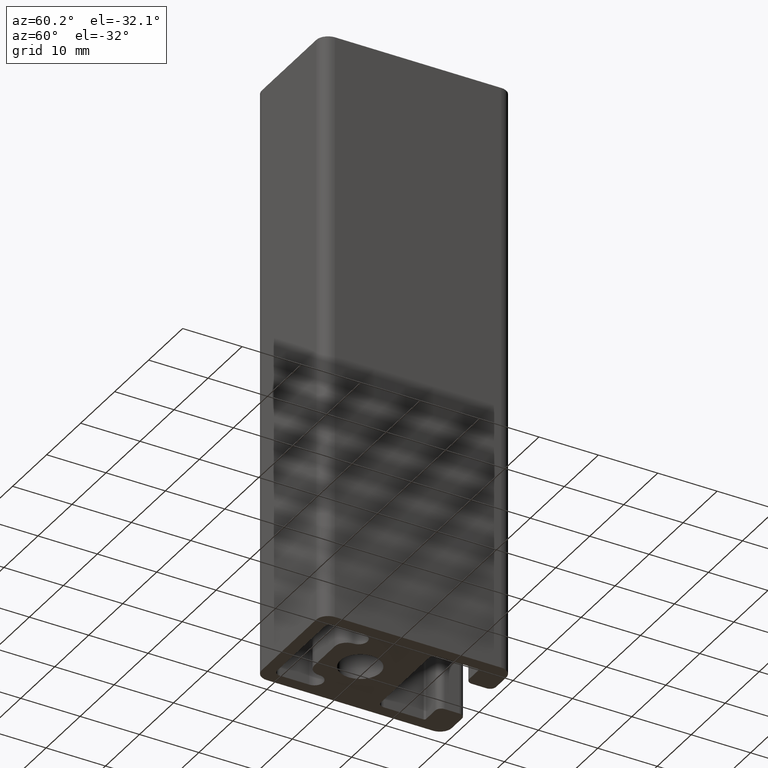
[diagram: clean part render]
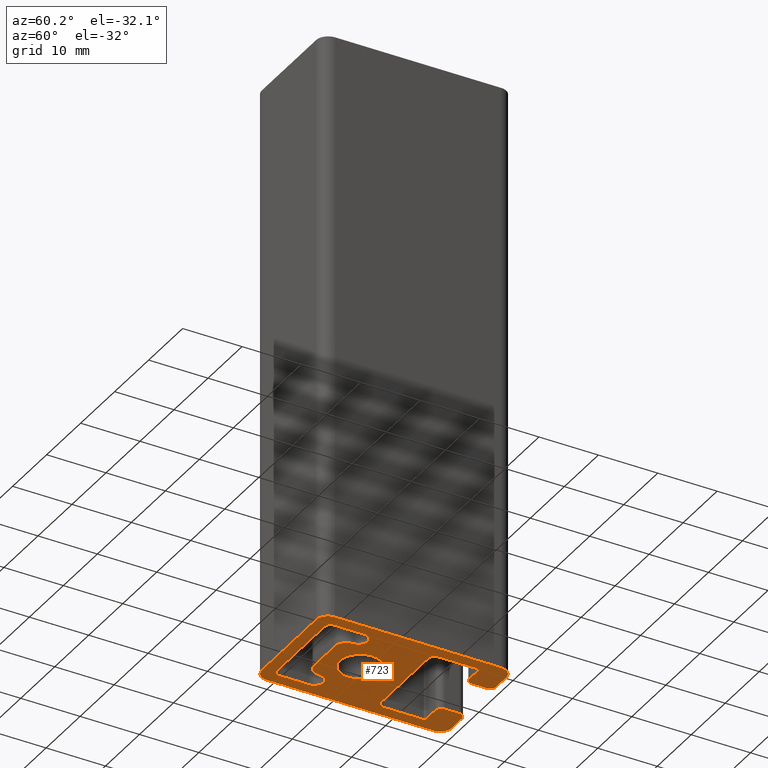
[diagram: same view with one face highlighted and labeled with its STEP entity id]
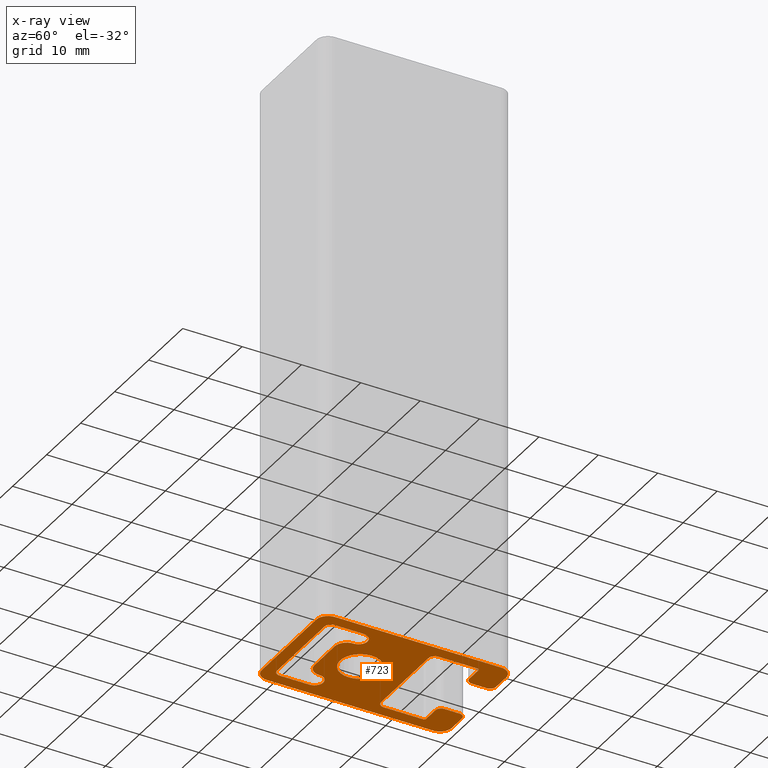
[diagram: x-ray of the same camera — body ghosted, the highlighted face saturated]
A machine part, auxiliary view. The second image highlights one B-rep face of the part: STEP entity #723.
The next image is the same camera in x-ray: the body ghosted, the highlighted face saturated — about 0% of this face is hidden behind the body in this view.
In plain terms, the highlighted planar face has unit normal (0, 0, 1).
Its self-contained STEP definition (entity closure, byte-faithful):
#17=LINE('',#1033,#83);
#21=LINE('',#1045,#87);
#26=LINE('',#1063,#92);
#31=LINE('',#1081,#97);
#37=LINE('',#1100,#103);
#41=LINE('',#1112,#107);
#45=LINE('',#1124,#111);
#49=LINE('',#1136,#115);
#53=LINE('',#1148,#119);
#57=LINE('',#1160,#123);
#61=LINE('',#1172,#127);
#63=LINE('',#1181,#129);
#68=LINE('',#1190,#134);
#73=LINE('',#1205,#139);
#77=LINE('',#1220,#143);
#80=LINE('',#1229,#146);
#83=VECTOR('',#814,14.0000011505603);
#87=VECTOR('',#826,5.00000057528016);
#92=VECTOR('',#845,5.99999999999999);
#97=VECTOR('',#864,5.00000057528015);
#103=VECTOR('',#884,2.50000399190596);
#107=VECTOR('',#896,2.70000144973507);
#111=VECTOR('',#908,6.70000144973492);
#115=VECTOR('',#920,14.0000039919057);
#119=VECTOR('',#932,6.70000144973492);
#123=VECTOR('',#944,2.70000144973507);
#127=VECTOR('',#956,2.50000399190597);
#129=VECTOR('',#966,3.00000199595299);
#134=VECTOR('',#973,3.00000199595296);
#139=VECTOR('',#986,28.);
#143=VECTOR('',#1004,28.);
#146=VECTOR('',#1015,16.);
#163=PLANE('',#800);
#166=FACE_BOUND('',#244,.T.);
#167=FACE_BOUND('',#245,.T.);
#205=FACE_OUTER_BOUND('',#243,.T.);
#243=EDGE_LOOP('',(#599,#600,#601,#602,#603,#604,#605,#606,#607,#608,#609,
#610,#611,#612,#613,#614,#615,#616,#617,#618,#619,#620,#621,#622));
#244=EDGE_LOOP('',(#623));
#245=EDGE_LOOP('',(#624,#625,#626,#627,#628,#629,#630,#631,#632,#633));
#250=CIRCLE('',#729,3.4);
#252=CIRCLE('',#733,0.999999424719846);
#254=CIRCLE('',#737,1.5);
#256=CIRCLE('',#740,2.);
#258=CIRCLE('',#744,2.);
#260=CIRCLE('',#747,1.5);
#262=CIRCLE('',#751,0.999999424719839);
#264=CIRCLE('',#754,0.999998004047022);
#266=CIRCLE('',#758,0.999998004047022);
#268=CIRCLE('',#762,0.300000546217913);
#270=CIRCLE('',#766,0.999998004047152);
#272=CIRCLE('',#770,0.99999800404715);
#274=CIRCLE('',#774,0.300000546217916);
#276=CIRCLE('',#778,0.999998004047022);
#278=CIRCLE('',#782,0.999998004047022);
#280=CIRCLE('',#787,2.);
#282=CIRCLE('',#791,1.99999999999999);
#284=CIRCLE('',#794,2.);
#286=CIRCLE('',#798,2.);
#288=VERTEX_POINT('',#1024);
#291=VERTEX_POINT('',#1030);
#292=VERTEX_POINT('',#1032);
#294=VERTEX_POINT('',#1038);
#296=VERTEX_POINT('',#1044);
#298=VERTEX_POINT('',#1050);
#300=VERTEX_POINT('',#1056);
#302=VERTEX_POINT('',#1062);
#304=VERTEX_POINT('',#1068);
#306=VERTEX_POINT('',#1074);
#308=VERTEX_POINT('',#1080);
#311=VERTEX_POINT('',#1090);
#312=VERTEX_POINT('',#1092);
#314=VERTEX_POINT('',#1098);
#316=VERTEX_POINT('',#1104);
#318=VERTEX_POINT('',#1110);
#320=VERTEX_POINT('',#1116);
#322=VERTEX_POINT('',#1122);
#324=VERTEX_POINT('',#1128);
#326=VERTEX_POINT('',#1134);
#328=VERTEX_POINT('',#1140);
#330=VERTEX_POINT('',#1146);
#332=VERTEX_POINT('',#1152);
#334=VERTEX_POINT('',#1158);
#336=VERTEX_POINT('',#1164);
#338=VERTEX_POINT('',#1170);
#340=VERTEX_POINT('',#1176);
#341=VERTEX_POINT('',#1180);
#344=VERTEX_POINT('',#1188);
#347=VERTEX_POINT('',#1195);
#348=VERTEX_POINT('',#1197);
#350=VERTEX_POINT('',#1203);
#352=VERTEX_POINT('',#1212);
#354=VERTEX_POINT('',#1218);
#356=VERTEX_POINT('',#1224);
#358=EDGE_CURVE('',#288,#288,#250,.T.);
#361=EDGE_CURVE('',#292,#291,#17,.T.);
#364=EDGE_CURVE('',#294,#292,#252,.T.);
#367=EDGE_CURVE('',#296,#294,#21,.T.);
#370=EDGE_CURVE('',#298,#296,#254,.T.);
#373=EDGE_CURVE('',#300,#298,#256,.T.);
#376=EDGE_CURVE('',#302,#300,#26,.T.);
#379=EDGE_CURVE('',#304,#302,#258,.T.);
#382=EDGE_CURVE('',#306,#304,#260,.T.);
#385=EDGE_CURVE('',#308,#306,#31,.T.);
#388=EDGE_CURVE('',#291,#308,#262,.T.);
#391=EDGE_CURVE('',#312,#311,#264,.T.);
#395=EDGE_CURVE('',#311,#314,#37,.T.);
#398=EDGE_CURVE('',#314,#316,#266,.T.);
#401=EDGE_CURVE('',#316,#318,#41,.T.);
#404=EDGE_CURVE('',#318,#320,#268,.T.);
#407=EDGE_CURVE('',#320,#322,#45,.T.);
#410=EDGE_CURVE('',#322,#324,#270,.T.);
#413=EDGE_CURVE('',#324,#326,#49,.T.);
#416=EDGE_CURVE('',#326,#328,#272,.T.);
#419=EDGE_CURVE('',#328,#330,#53,.T.);
#422=EDGE_CURVE('',#330,#332,#274,.T.);
#425=EDGE_CURVE('',#332,#334,#57,.T.);
#428=EDGE_CURVE('',#334,#336,#276,.T.);
#431=EDGE_CURVE('',#336,#338,#61,.T.);
#434=EDGE_CURVE('',#338,#340,#278,.T.);
#435=EDGE_CURVE('',#341,#312,#63,.T.);
#440=EDGE_CURVE('',#340,#344,#68,.T.);
#443=EDGE_CURVE('',#348,#347,#280,.T.);
#447=EDGE_CURVE('',#347,#350,#73,.T.);
#449=EDGE_CURVE('',#350,#341,#282,.T.);
#452=EDGE_CURVE('',#344,#352,#284,.T.);
#455=EDGE_CURVE('',#352,#354,#77,.T.);
#458=EDGE_CURVE('',#354,#356,#286,.T.);
#460=EDGE_CURVE('',#356,#348,#80,.T.);
#599=ORIENTED_EDGE('',*,*,#434,.T.);
#600=ORIENTED_EDGE('',*,*,#440,.T.);
#601=ORIENTED_EDGE('',*,*,#452,.T.);
#602=ORIENTED_EDGE('',*,*,#455,.T.);
#603=ORIENTED_EDGE('',*,*,#458,.T.);
#604=ORIENTED_EDGE('',*,*,#460,.T.);
#605=ORIENTED_EDGE('',*,*,#443,.T.);
#606=ORIENTED_EDGE('',*,*,#447,.T.);
#607=ORIENTED_EDGE('',*,*,#449,.T.);
#608=ORIENTED_EDGE('',*,*,#435,.T.);
#609=ORIENTED_EDGE('',*,*,#391,.T.);
#610=ORIENTED_EDGE('',*,*,#395,.T.);
#611=ORIENTED_EDGE('',*,*,#398,.T.);
#612=ORIENTED_EDGE('',*,*,#401,.T.);
#613=ORIENTED_EDGE('',*,*,#404,.T.);
#614=ORIENTED_EDGE('',*,*,#407,.T.);
#615=ORIENTED_EDGE('',*,*,#410,.T.);
#616=ORIENTED_EDGE('',*,*,#413,.T.);
#617=ORIENTED_EDGE('',*,*,#416,.T.);
#618=ORIENTED_EDGE('',*,*,#419,.T.);
#619=ORIENTED_EDGE('',*,*,#422,.T.);
#620=ORIENTED_EDGE('',*,*,#425,.T.);
#621=ORIENTED_EDGE('',*,*,#428,.T.);
#622=ORIENTED_EDGE('',*,*,#431,.T.);
#623=ORIENTED_EDGE('',*,*,#358,.T.);
#624=ORIENTED_EDGE('',*,*,#361,.T.);
#625=ORIENTED_EDGE('',*,*,#388,.T.);
#626=ORIENTED_EDGE('',*,*,#385,.T.);
#627=ORIENTED_EDGE('',*,*,#382,.T.);
#628=ORIENTED_EDGE('',*,*,#379,.T.);
#629=ORIENTED_EDGE('',*,*,#376,.T.);
#630=ORIENTED_EDGE('',*,*,#373,.T.);
#631=ORIENTED_EDGE('',*,*,#370,.T.);
#632=ORIENTED_EDGE('',*,*,#367,.T.);
#633=ORIENTED_EDGE('',*,*,#364,.T.);
#723=ADVANCED_FACE('',(#205,#166,#167),#163,.F.);
#729=AXIS2_PLACEMENT_3D('',#1025,#808,#809);
#733=AXIS2_PLACEMENT_3D('',#1039,#820,#821);
#737=AXIS2_PLACEMENT_3D('',#1051,#832,#833);
#740=AXIS2_PLACEMENT_3D('',#1057,#839,#840);
#744=AXIS2_PLACEMENT_3D('',#1069,#851,#852);
#747=AXIS2_PLACEMENT_3D('',#1075,#858,#859);
#751=AXIS2_PLACEMENT_3D('',#1085,#870,#871);
#754=AXIS2_PLACEMENT_3D('',#1093,#877,#878);
#758=AXIS2_PLACEMENT_3D('',#1106,#890,#891);
#762=AXIS2_PLACEMENT_3D('',#1118,#902,#903);
#766=AXIS2_PLACEMENT_3D('',#1130,#914,#915);
#770=AXIS2_PLACEMENT_3D('',#1142,#926,#927);
#774=AXIS2_PLACEMENT_3D('',#1154,#938,#939);
#778=AXIS2_PLACEMENT_3D('',#1166,#950,#951);
#782=AXIS2_PLACEMENT_3D('',#1178,#962,#963);
#787=AXIS2_PLACEMENT_3D('',#1198,#979,#980);
#791=AXIS2_PLACEMENT_3D('',#1208,#991,#992);
#794=AXIS2_PLACEMENT_3D('',#1214,#998,#999);
#798=AXIS2_PLACEMENT_3D('',#1226,#1010,#1011);
#800=AXIS2_PLACEMENT_3D('',#1230,#1016,#1017);
#808=DIRECTION('center_axis',(0.,0.,1.));
#809=DIRECTION('ref_axis',(-1.,0.,0.));
#814=DIRECTION('',(1.,1.90323931437229E-15,0.));
#820=DIRECTION('center_axis',(0.,0.,1.));
#821=DIRECTION('ref_axis',(-1.,1.1102236633148E-14,0.));
#826=DIRECTION('',(1.11022289688732E-15,-1.,0.));
#832=DIRECTION('center_axis',(0.,0.,1.));
#833=DIRECTION('ref_axis',(1.,-2.96059473233372E-15,0.));
#839=DIRECTION('center_axis',(0.,0.,-1.));
#840=DIRECTION('ref_axis',(1.,6.38378239159465E-15,0.));
#845=DIRECTION('',(-1.,-3.7007434154172E-16,0.));
#851=DIRECTION('center_axis',(0.,0.,-1.));
#852=DIRECTION('ref_axis',(4.16333634234434E-15,1.,0.));
#858=DIRECTION('center_axis',(0.,0.,1.));
#859=DIRECTION('ref_axis',(1.,-1.85037170770859E-15,0.));
#864=DIRECTION('',(2.66453495252956E-15,1.,0.));
#870=DIRECTION('center_axis',(0.,0.,1.));
#871=DIRECTION('ref_axis',(-1.11022366331481E-15,-1.,0.));
#877=DIRECTION('center_axis',(0.,0.,-1.));
#878=DIRECTION('ref_axis',(-1.,-2.44249552928157E-14,0.));
#884=DIRECTION('',(3.10861950522375E-15,-1.,0.));
#890=DIRECTION('center_axis',(0.,0.,-1.));
#891=DIRECTION('ref_axis',(7.21646406378645E-15,1.,0.));
#896=DIRECTION('',(-1.,-5.75670888853682E-15,0.));
#902=DIRECTION('center_axis',(0.,0.,1.));
#903=DIRECTION('ref_axis',(-8.5116943579931E-14,1.,0.));
#908=DIRECTION('',(-3.47980275706518E-15,-1.,0.));
#914=DIRECTION('center_axis',(0.,0.,1.));
#915=DIRECTION('ref_axis',(-1.,3.33067572174717E-15,0.));
#920=DIRECTION('',(1.,-3.17206488017303E-16,0.));
#926=DIRECTION('center_axis',(0.,0.,1.));
#927=DIRECTION('ref_axis',(-1.11022524058239E-15,-1.,0.));
#932=DIRECTION('',(3.3140978638716E-16,1.,0.));
#938=DIRECTION('center_axis',(0.,0.,1.));
#939=DIRECTION('ref_axis',(1.,-8.88176802573186E-14,0.));
#944=DIRECTION('',(-1.,-9.86864380892028E-15,0.));
#950=DIRECTION('center_axis',(0.,0.,-1.));
#951=DIRECTION('ref_axis',(1.,-1.33227028869904E-14,0.));
#956=DIRECTION('',(-4.44088500746247E-16,1.,0.));
#962=DIRECTION('center_axis',(0.,0.,-1.));
#963=DIRECTION('ref_axis',(-6.10623882320389E-15,-1.,0.));
#966=DIRECTION('',(1.,0.,0.));
#973=DIRECTION('',(1.,0.,0.));
#979=DIRECTION('center_axis',(0.,0.,-1.));
#980=DIRECTION('ref_axis',(1.,1.11022302462516E-15,0.));
#986=DIRECTION('',(-1.58603289232165E-16,1.,0.));
#991=DIRECTION('center_axis',(0.,0.,-1.));
#992=DIRECTION('ref_axis',(-2.7755575615629E-15,-1.,0.));
#998=DIRECTION('center_axis',(0.,0.,-1.));
#999=DIRECTION('ref_axis',(-1.,-1.11022302462516E-15,0.));
#1004=DIRECTION('',(1.18952466924124E-16,-1.,0.));
#1010=DIRECTION('center_axis',(0.,0.,-1.));
#1011=DIRECTION('ref_axis',(-1.11022302462516E-15,1.,0.));
#1015=DIRECTION('',(-1.,0.,0.));
#1016=DIRECTION('center_axis',(0.,0.,1.));
#1017=DIRECTION('ref_axis',(1.,0.,0.));
#1024=CARTESIAN_POINT('',(3.4,4.163799117101E-16,0.));
#1025=CARTESIAN_POINT('Origin',(0.,0.,0.));
#1030=CARTESIAN_POINT('',(7.00000057528015,-9.99999999999999,0.));
#1032=CARTESIAN_POINT('',(-7.00000057528017,-10.,0.));
#1033=CARTESIAN_POINT('',(-3.50000028764007,-10.,0.));
#1038=CARTESIAN_POINT('',(-8.00000000000001,-9.00000057528016,0.));
#1039=CARTESIAN_POINT('Origin',(-7.00000057528017,-9.00000057528017,0.));
#1044=CARTESIAN_POINT('',(-8.00000000000002,-4.,0.));
#1045=CARTESIAN_POINT('',(-8.00000000000002,-6.10622612448701E-15,0.));
#1050=CARTESIAN_POINT('',(-4.99999999999999,-4.00000000000001,0.));
#1051=CARTESIAN_POINT('Origin',(-6.5,-4.,0.));
#1056=CARTESIAN_POINT('',(-2.99999999999999,-5.99999999999999,0.));
#1057=CARTESIAN_POINT('Origin',(-2.99999999999999,-3.99999999999999,0.));
#1062=CARTESIAN_POINT('',(2.99999999999999,-5.99999999999999,0.));
#1063=CARTESIAN_POINT('',(1.5,-5.99999999999999,0.));
#1068=CARTESIAN_POINT('',(5.,-4.,0.));
#1069=CARTESIAN_POINT('Origin',(3.,-3.99999999999999,0.));
#1074=CARTESIAN_POINT('',(8.,-4.00000000000001,0.));
#1075=CARTESIAN_POINT('Origin',(6.5,-4.,0.));
#1080=CARTESIAN_POINT('',(7.99999999999999,-9.00000057528016,0.));
#1081=CARTESIAN_POINT('',(8.00000000000001,-2.50000028764009,0.));
#1085=CARTESIAN_POINT('Origin',(7.00000057528015,-9.00000057528015,0.));
#1090=CARTESIAN_POINT('',(-4.,19.000001995953,0.));
#1092=CARTESIAN_POINT('',(-4.99999800404701,20.,0.));
#1093=CARTESIAN_POINT('Origin',(-4.99999800404702,19.000001995953,0.));
#1098=CARTESIAN_POINT('',(-3.99999999999999,16.499998004047,0.));
#1100=CARTESIAN_POINT('',(-3.99999999999998,11.5000009979765,0.));
#1104=CARTESIAN_POINT('',(-4.99999800404702,15.5,0.));
#1106=CARTESIAN_POINT('Origin',(-4.99999800404701,16.499998004047,0.));
#1110=CARTESIAN_POINT('',(-7.69999945378209,15.5,0.));
#1112=CARTESIAN_POINT('',(-2.49999900202354,15.5,0.));
#1116=CARTESIAN_POINT('',(-7.99999999999998,15.1999994537821,0.));
#1118=CARTESIAN_POINT('Origin',(-7.69999945378207,15.1999994537821,0.));
#1122=CARTESIAN_POINT('',(-8.00000000000001,8.49999800404716,0.));
#1124=CARTESIAN_POINT('',(-8.,9.59999972689105,0.));
#1128=CARTESIAN_POINT('',(-7.00000199595285,7.5,0.));
#1130=CARTESIAN_POINT('Origin',(-7.00000199595286,8.49999800404715,0.));
#1134=CARTESIAN_POINT('',(7.00000199595286,7.5,0.));
#1136=CARTESIAN_POINT('',(-3.50000099797643,7.5,0.));
#1140=CARTESIAN_POINT('',(8.00000000000001,8.49999800404716,0.));
#1142=CARTESIAN_POINT('Origin',(7.00000199595286,8.49999800404715,0.));
#1146=CARTESIAN_POINT('',(8.00000000000001,15.1999994537821,0.));
#1148=CARTESIAN_POINT('',(8.00000000000001,6.24999900202358,0.));
#1152=CARTESIAN_POINT('',(7.6999994537821,15.5,0.));
#1154=CARTESIAN_POINT('Origin',(7.6999994537821,15.1999994537821,0.));
#1158=CARTESIAN_POINT('',(4.99999800404704,15.5,0.));
#1160=CARTESIAN_POINT('',(3.84999972689099,15.5,0.));
#1164=CARTESIAN_POINT('',(4.00000000000001,16.499998004047,0.));
#1166=CARTESIAN_POINT('Origin',(4.99999800404703,16.499998004047,0.));
#1170=CARTESIAN_POINT('',(4.00000000000001,19.000001995953,0.));
#1172=CARTESIAN_POINT('',(4.00000000000001,10.2499990020235,0.));
#1176=CARTESIAN_POINT('',(4.99999800404703,20.,0.));
#1178=CARTESIAN_POINT('Origin',(4.99999800404703,19.000001995953,0.));
#1180=CARTESIAN_POINT('',(-8.00000000000001,20.,0.));
#1181=CARTESIAN_POINT('',(4.,20.,0.));
#1188=CARTESIAN_POINT('',(8.,20.,0.));
#1190=CARTESIAN_POINT('',(4.,20.,0.));
#1195=CARTESIAN_POINT('',(-10.,-10.,0.));
#1197=CARTESIAN_POINT('',(-8.,-12.,0.));
#1198=CARTESIAN_POINT('Origin',(-8.,-10.,0.));
#1203=CARTESIAN_POINT('',(-10.,18.,0.));
#1205=CARTESIAN_POINT('',(-10.,11.,0.));
#1208=CARTESIAN_POINT('Origin',(-8.00000000000001,18.,0.));
#1212=CARTESIAN_POINT('',(10.,18.,0.));
#1214=CARTESIAN_POINT('Origin',(8.,18.,0.));
#1218=CARTESIAN_POINT('',(10.,-10.,0.));
#1220=CARTESIAN_POINT('',(10.,-3.,0.));
#1224=CARTESIAN_POINT('',(8.,-12.,0.));
#1226=CARTESIAN_POINT('Origin',(8.,-10.,0.));
#1229=CARTESIAN_POINT('',(-4.,-12.,0.));
#1230=CARTESIAN_POINT('Origin',(-1.11022302462516E-15,4.,0.));